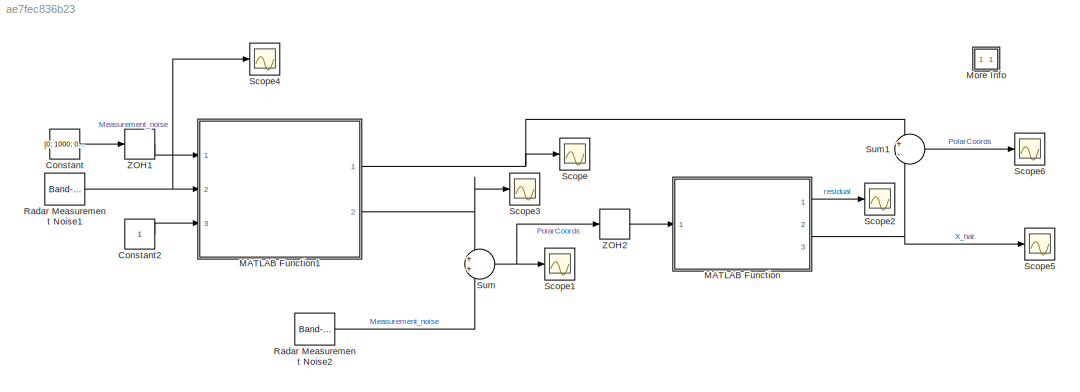
MODEL slx_ae7fec836b23
KIND model
CONFIG AbsTol = 1e-6
CONFIG EnableMultiTasking = off
CONFIG FixedStep = 0.1
CONFIG MaxStep = 0.1
CONFIG MinStep = auto
CONFIG RelTol = 1e-3
CONFIG SampleTimeConstraint = Unconstrained
CONFIG Solver = ode5
CONFIG SolverName = ode5
CONFIG StartFcn = clear radarLogsOut
CONFIG StartTime = 0.0
CONFIG StopFcn = aero_radplot;
CONFIG StopTime = 20
WORKSPACE source: MATLAB code (in-file)
WORKSPACE g = 32.2
WORKSPACE tauc = 5
WORKSPACE tauT = 4
WORKSPACE Speed = 400
WORKSPACE deltat = 1
BLOCK [Constant] Constant
  SampleTime = deltat
  Value = [0; 1000; 0; 0; 0; 0; 0; 0]
BLOCK [Constant] Constant2
  SampleTime = 0.1
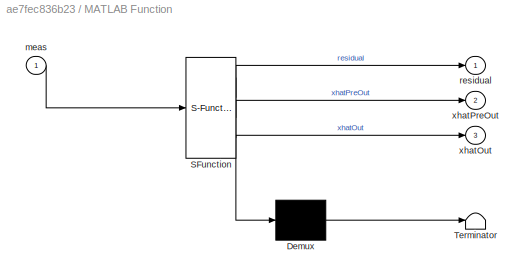
BLOCK [SubSystem] MATLAB Function
  ErrorFcn = Stateflow.Translate.translate
  PermitHierarchicalResolution = ExplicitOnly
  Ports = [1, 3]
  RequestExecContextInheritance = off
  SFBlockType = MATLAB Function
  TreatAsAtomicUnit = on
BLOCK [Demux] MATLAB Function/ Demux 
  Outputs = 1
  Ports = [1, 1]
BLOCK [S-Function] MATLAB Function/ SFunction 
  EnableBusSupport = on
  FunctionName = sf_sfun
  PortCounts = [1 4]
  Ports = [1, 4]
  SFcnIsStateOwnerBlock = off
  SFunctionDeploymentMode = off
  Tag = Stateflow S-Function ekf 2
BLOCK [Terminator] MATLAB Function/ Terminator 
BLOCK [Inport] MATLAB Function/meas
  IconDisplay = Port number
BLOCK [Outport] MATLAB Function/residual
  IconDisplay = Port number
BLOCK [Outport] MATLAB Function/xhatOut
  IconDisplay = Port number
  Port = 3
BLOCK [Outport] MATLAB Function/xhatPreOut
  IconDisplay = Port number
  Port = 2
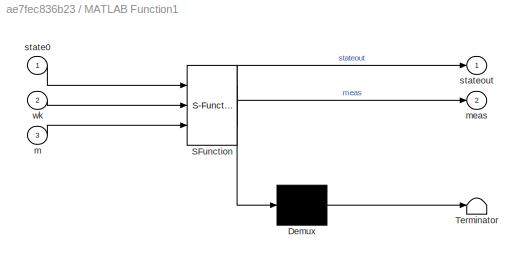
BLOCK [SubSystem] MATLAB Function1
  ErrorFcn = Stateflow.Translate.translate
  PermitHierarchicalResolution = ExplicitOnly
  Ports = [3, 2]
  RequestExecContextInheritance = off
  SFBlockType = MATLAB Function
  TreatAsAtomicUnit = on
BLOCK [Demux] MATLAB Function1/ Demux 
  Outputs = 1
  Ports = [1, 1]
BLOCK [S-Function] MATLAB Function1/ SFunction 
  EnableBusSupport = on
  FunctionName = sf_sfun
  PortCounts = [3 3]
  Ports = [3, 3]
  SFcnIsStateOwnerBlock = off
  SFunctionDeploymentMode = off
  Tag = Stateflow S-Function ekf 1
BLOCK [Terminator] MATLAB Function1/ Terminator 
BLOCK [Inport] MATLAB Function1/m
  IconDisplay = Port number
  Port = 3
BLOCK [Outport] MATLAB Function1/meas
  IconDisplay = Port number
  Port = 2
BLOCK [Inport] MATLAB Function1/state0
  IconDisplay = Port number
BLOCK [Outport] MATLAB Function1/stateout
  IconDisplay = Port number
BLOCK [Inport] MATLAB Function1/wk
  IconDisplay = Port number
  Port = 2
BLOCK [SubSystem] More Info
  OpenFcn = showdemo(bdroot(gcs))
  Ports = []
  RequestExecContextInheritance = off
BLOCK [Reference] Radar Measurement Noise1  REF=simulink/Sources/Band-Limited
White Noise
  Ports = [0, 1]
  SourceBlock = simulink/Sources/Band-Limited\nWhite Noise
  SourceProductBaseCode = SL
  SourceProductName = Simulink
  SourceType = Band-Limited White Noise.
BLOCK [Reference] Radar Measurement Noise2  REF=simulink/Sources/Band-Limited
White Noise
  Ports = [0, 1]
  SourceBlock = simulink/Sources/Band-Limited\nWhite Noise
  SourceProductBaseCode = SL
  SourceProductName = Simulink
  SourceType = Band-Limited White Noise.
BLOCK [Scope] Scope
  Floating = off
  NumInputPorts = 1
  Ports = [1]
  ScopeSpecificationString = Simulink.scopes.TimeScopeBlockCfg('CurrentConfiguration', extmgr.ConfigurationSet(extmgr.Configuration('Core','General UI',true),extmgr.Configuration('Core','Source UI',true),extmgr.Configuration('Sources','WiredSimulink',true),extmgr.Configuration('Visuals','Time Domain',true,'SerializedDisplays',{struct('MinYLimReal','-2498.62641','MaxYLimReal','1389.11238','YLabelReal','','MinYLimMag','  0.0000...<+1677ch>
BLOCK [Scope] Scope1
  Floating = off
  NumInputPorts = 1
  Ports = [1]
  ScopeSpecificationString = Simulink.scopes.TimeScopeBlockCfg('CurrentConfiguration', extmgr.ConfigurationSet(extmgr.Configuration('Core','General UI',true),extmgr.Configuration('Core','Source UI',true),extmgr.Configuration('Sources','WiredSimulink',true,'DataLoggingVariableName','ScopeData1'),extmgr.Configuration('Visuals','Time Domain',true,'SerializedDisplays',{struct('MinYLimReal','291.43506','MaxYLimReal','1157.3017','Y...<+1472ch>
BLOCK [Scope] Scope2
  Floating = off
  NumInputPorts = 1
  Ports = [1]
  ScopeSpecificationString = Simulink.scopes.TimeScopeBlockCfg('CurrentConfiguration', extmgr.ConfigurationSet(extmgr.Configuration('Core','General UI',true),extmgr.Configuration('Core','Source UI',true),extmgr.Configuration('Sources','WiredSimulink',true,'DataLoggingVariableName','ScopeData2'),extmgr.Configuration('Visuals','Time Domain',true,'SerializedDisplays',{struct('MinYLimReal','-112.16776','MaxYLimReal','86.26131','Y...<+1465ch>
BLOCK [Scope] Scope3
  Floating = off
  NumInputPorts = 1
  Ports = [1]
  ScopeSpecificationString = Simulink.scopes.TimeScopeBlockCfg('CurrentConfiguration', extmgr.ConfigurationSet(extmgr.Configuration('Core','General UI',true),extmgr.Configuration('Core','Source UI',true),extmgr.Configuration('Sources','WiredSimulink',true,'DataLoggingVariableName','ScopeData3'),extmgr.Configuration('Visuals','Time Domain',true,'SerializedDisplays',{struct('MinYLimReal','-128.43221','MaxYLimReal','1155.88988',...<+1426ch>
BLOCK [Scope] Scope4
  Floating = off
  NumInputPorts = 1
  Ports = [1]
  ScopeSpecificationString = Simulink.scopes.TimeScopeBlockCfg('CurrentConfiguration', extmgr.ConfigurationSet(extmgr.Configuration('Core','General UI',true),extmgr.Configuration('Core','Source UI',true),extmgr.Configuration('Sources','WiredSimulink',true,'DataLoggingVariableName','ScopeData1'),extmgr.Configuration('Visuals','Time Domain',true,'SerializedDisplays',{struct('MinYLimReal','-36.0781','MaxYLimReal','30.42608','YLa...<+1634ch>
BLOCK [Scope] Scope5
  Floating = off
  NumInputPorts = 1
  Ports = [1]
  ScopeSpecificationString = Simulink.scopes.TimeScopeBlockCfg('CurrentConfiguration', extmgr.ConfigurationSet(extmgr.Configuration('Core','General UI',true),extmgr.Configuration('Core','Source UI',true),extmgr.Configuration('Sources','WiredSimulink',true,'DataLoggingVariableName','ScopeData2'),extmgr.Configuration('Visuals','Time Domain',true,'SerializedDisplays',{struct('MinYLimReal','-169.86732','MaxYLimReal','1140.96155',...<+1554ch>
BLOCK [Scope] Scope6
  Floating = off
  NumInputPorts = 1
  Ports = [1]
  ScopeSpecificationString = Simulink.scopes.TimeScopeBlockCfg('CurrentConfiguration', extmgr.ConfigurationSet(extmgr.Configuration('Core','General UI',true),extmgr.Configuration('Core','Source UI',true),extmgr.Configuration('Sources','WiredSimulink',true,'DataLoggingVariableName','ScopeData1'),extmgr.Configuration('Visuals','Time Domain',true,'SerializedDisplays',{struct('MinYLimReal','-53.21915','MaxYLimReal','36.19845','YL...<+1589ch>
BLOCK [Sum] Sum
  IconShape = round
  Inputs = 2
  Ports = [2, 1]
BLOCK [Sum] Sum1
  IconShape = round
  Inputs = +-
  Ports = [2, 1]
BLOCK [ZeroOrderHold] ZOH1
  SampleTime = 0.1
BLOCK [ZeroOrderHold] ZOH2
  SampleTime = 0.5
LINE Constant2:1 -> MATLAB Function1:3
LINE Constant:1 -> ZOH1:1
NET MATLAB Function1:1 -> Scope:1, Sum1:1
NET MATLAB Function1:2 -> Scope3:1, Sum:1
LINE MATLAB Function:1 -> Scope2:1
NET MATLAB Function:3 -> Scope5:1, Sum1:2
NET Radar Measurement Noise1:1 -> MATLAB Function1:2, Scope4:1
LINE Radar Measurement Noise2:1 -> Sum:2
LINE Sum1:1 -> Scope6:1
NET Sum:1 -> Scope1:1, ZOH2:1
LINE ZOH1:1 -> MATLAB Function1:1
LINE ZOH2:1 -> MATLAB Function:1
note: NET lines group one-source signal fan-out (src -> all destinations, sorted); 1:1 wires keep LINE
CHART MATLAB Function1 states=1 transitions=1
  STATE_LABEL 'eML_blk_kernel()'
  STATE_LABEL 'SCRIPT:\nfunction [stateout, meas]  = Envrionment(state0, wk, m)\n\n% Initialization\ndeltat = 0.1;\ng=9.836;\npersistent state;\n\nif isempty(state)\n    state = state0;\nend\n \nh_ = 2;\nbet_ = 150;\nrho0_ = 1.225;\nkp_ = 9200;\n% \nry = state(2);\nvy = state(4);\ndeltah = state(5);\ndeltabet = state(6);\ndeltarho = state(7);\ndeltakp = state(8);\n% \nh=h_+deltah;\nbet=bet_+deltabet;\nrho0=rho0_+deltarho;\nkp=kp_+deltakp;...<+536ch>'
CHART MATLAB Function states=1 transitions=1
  STATE_LABEL 'eML_blk_kernel()'
  STATE_LABEL 'SCRIPT:\nfunction [residual,xhatPreOut, xhatOut] = EXTKALMAN(meas)\n\npersistent P;\npersistent xhat\n\nif isempty(P)\n    xhat = [0; 1000; 0; 0; 0; 0; 0; 0];\n    P = zeros(8);\n    P(2)=10;\n    P(4)=1;\nend\n\ng=9.836;\ndelta_t=0.5;\nm = 1;\nh_ = 2;\nbet_ = 150;\nrho0_ = 1.225;\nkp_ = 9200;\n% \nry = xhat(2);\nvy = xhat(4);\ndeltah = xhat(5);\ndeltabet = xhat(6);\ndeltarho = xhat(7);\ndeltakp = xhat(8);\n% \nh=h_+deltah;\n...<+1105ch>'
